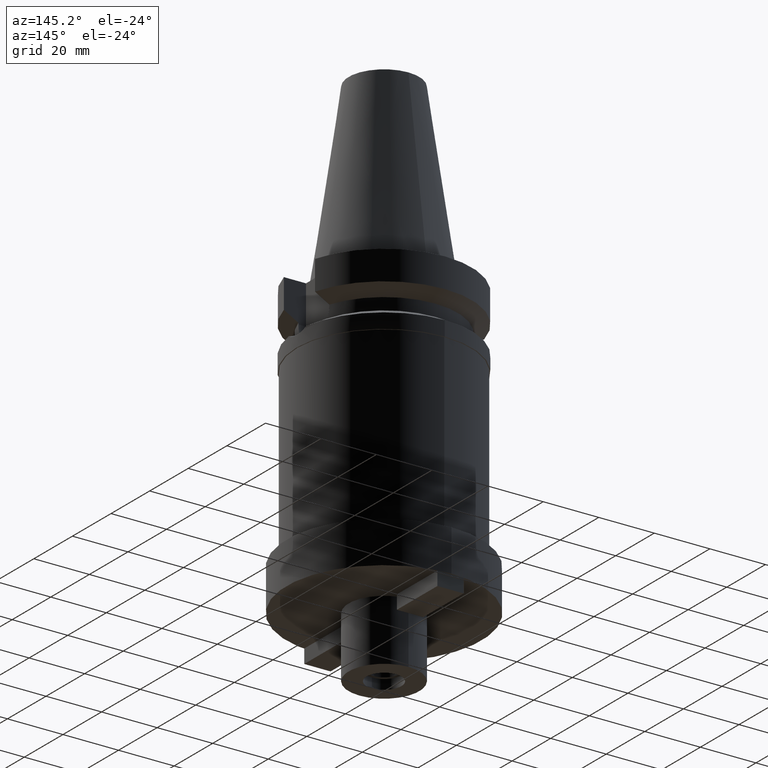
[diagram: clean part render]
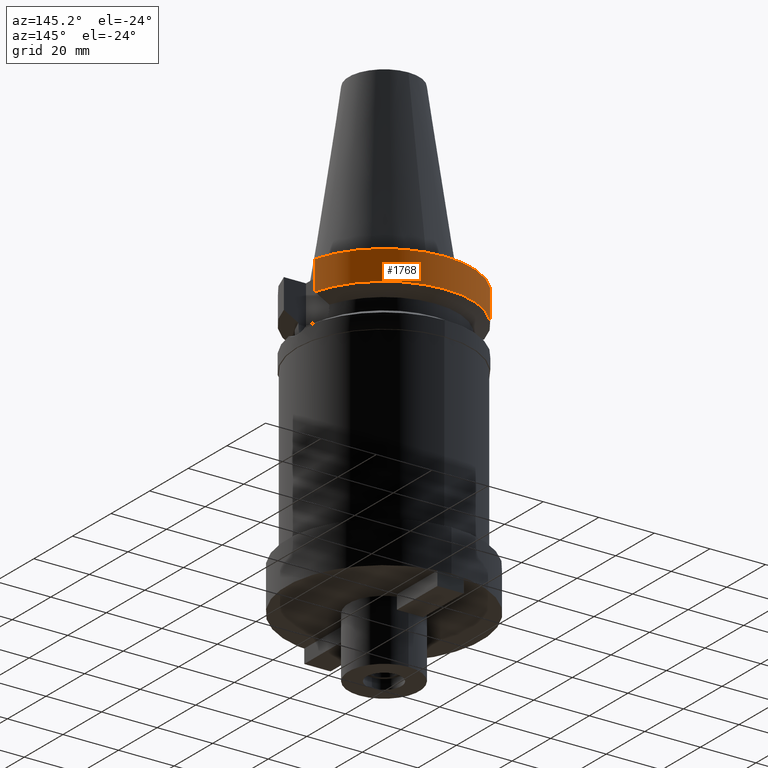
[diagram: same view with one face highlighted and labeled with its STEP entity id]
A machine part, auxiliary view. The second image highlights one B-rep face of the part: STEP entity #1768.
In plain terms, the highlighted cylindrical surface (partial cylindrical patch) has radius 31.5 mm, axis along (0, 0, -1).
Its self-contained STEP definition (entity closure, byte-faithful):
#108=CARTESIAN_POINT('',(0.E0,2.143376827868E-14,-1.E0));
#109=DIRECTION('',(0.E0,0.E0,-1.E0));
#110=DIRECTION('',(-9.667943721520E-1,2.555555555556E-1,0.E0));
#111=AXIS2_PLACEMENT_3D('',#108,#109,#110);
#116=CARTESIAN_POINT('',(0.E0,2.143376827868E-14,-1.E0));
#117=DIRECTION('',(0.E0,0.E0,-1.E0));
#118=DIRECTION('',(0.E0,1.E0,0.E0));
#119=AXIS2_PLACEMENT_3D('',#116,#117,#118);
#344=CARTESIAN_POINT('',(3.045402291367E1,8.049999277880E0,-1.156551215665E1));
#393=CARTESIAN_POINT('',(-3.045402162750E1,8.050004143577E0,-1.156546832909E1));
#414=CARTESIAN_POINT('',(0.E0,1.065333950388E-14,-1.156550565267E1));
#415=DIRECTION('',(0.E0,0.E0,1.E0));
#416=DIRECTION('',(9.667943721520E-1,2.555555555555E-1,0.E0));
#417=AXIS2_PLACEMENT_3D('',#414,#415,#416);
#422=CARTESIAN_POINT('',(0.E0,1.065333950388E-14,-1.156550565267E1));
#423=DIRECTION('',(0.E0,0.E0,1.E0));
#424=DIRECTION('',(0.E0,1.E0,0.E0));
#425=AXIS2_PLACEMENT_3D('',#422,#423,#424);
#430=DIRECTION('',(1.036665069411E-7,3.921811009649E-7,-9.999999999999E-1));
#431=VECTOR('',#430,1.056546832909E1);
#432=CARTESIAN_POINT('',(-3.045402272279E1,8.05E0,-1.E0));
#433=LINE('',#432,#431);
#437=DIRECTION('',(-1.806627156374E-8,6.834690353877E-8,1.E0));
#438=VECTOR('',#437,1.056551215665E1);
#439=CARTESIAN_POINT('',(3.045402291367E1,8.049999277880E0,-1.156551215665E1));
#440=LINE('',#439,#438);
#1407=CARTESIAN_POINT('',(-3.045402272279E1,8.05E0,-1.E0));
#1408=VERTEX_POINT('',#1407);
#1409=CARTESIAN_POINT('',(-3.046064939756E-14,3.15E1,-1.E0));
#1410=CARTESIAN_POINT('',(3.045402272279E1,8.05E0,-1.E0));
#1411=VERTEX_POINT('',#1409);
#1412=VERTEX_POINT('',#1410);
#1429=VERTEX_POINT('',#393);
#1434=VERTEX_POINT('',#344);
#1435=CARTESIAN_POINT('',(0.E0,3.15E1,-1.156550565267E1));
#1436=VERTEX_POINT('',#1435);
#1755=CARTESIAN_POINT('',(0.E0,2.143376827868E-14,7.502E1));
#1756=DIRECTION('',(0.E0,0.E0,-1.E0));
#1757=DIRECTION('',(0.E0,-1.E0,0.E0));
#1758=AXIS2_PLACEMENT_3D('',#1755,#1756,#1757);
#1759=CYLINDRICAL_SURFACE('',#1758,3.15E1);
#1760=ORIENTED_EDGE('',*,*,#1730,.T.);
#1761=ORIENTED_EDGE('',*,*,#1750,.F.);
#1762=ORIENTED_EDGE('',*,*,#1748,.F.);
#1763=ORIENTED_EDGE('',*,*,#1692,.T.);
#1764=ORIENTED_EDGE('',*,*,#1538,.F.);
#1765=ORIENTED_EDGE('',*,*,#1536,.F.);
#1766=EDGE_LOOP('',(#1760,#1761,#1762,#1763,#1764,#1765));
#1767=FACE_OUTER_BOUND('',#1766,.F.);
#112=CIRCLE('',#111,3.15E1);
#120=CIRCLE('',#119,3.15E1);
#418=CIRCLE('',#417,3.15E1);
#426=CIRCLE('',#425,3.15E1);
#1536=EDGE_CURVE('',#1408,#1411,#112,.T.);
#1538=EDGE_CURVE('',#1411,#1412,#120,.T.);
#1692=EDGE_CURVE('',#1434,#1412,#440,.T.);
#1730=EDGE_CURVE('',#1408,#1429,#433,.T.);
#1748=EDGE_CURVE('',#1434,#1436,#418,.T.);
#1750=EDGE_CURVE('',#1436,#1429,#426,.T.);
#1768=ADVANCED_FACE('',(#1767),#1759,.T.);